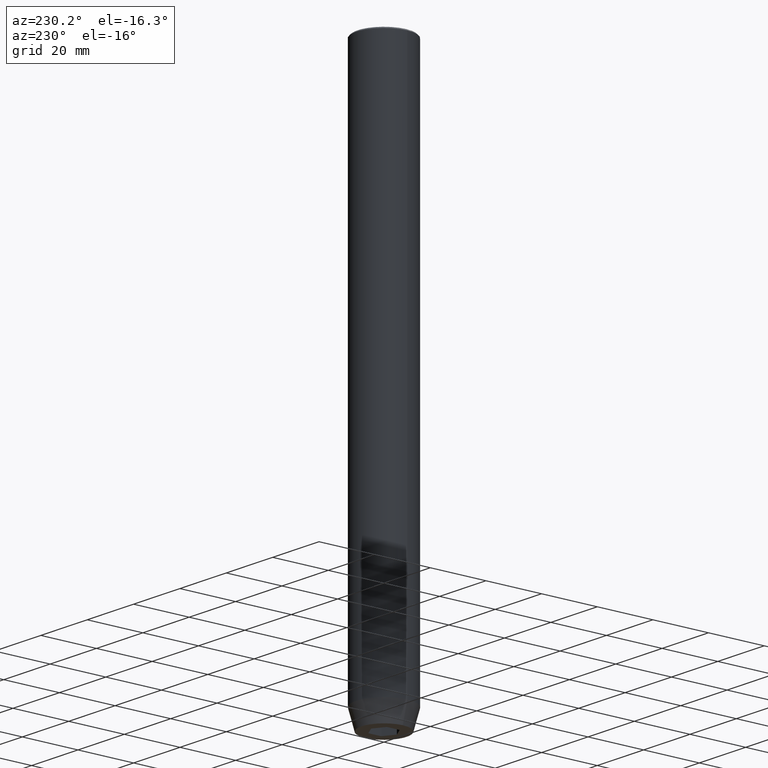
[diagram: clean part render]
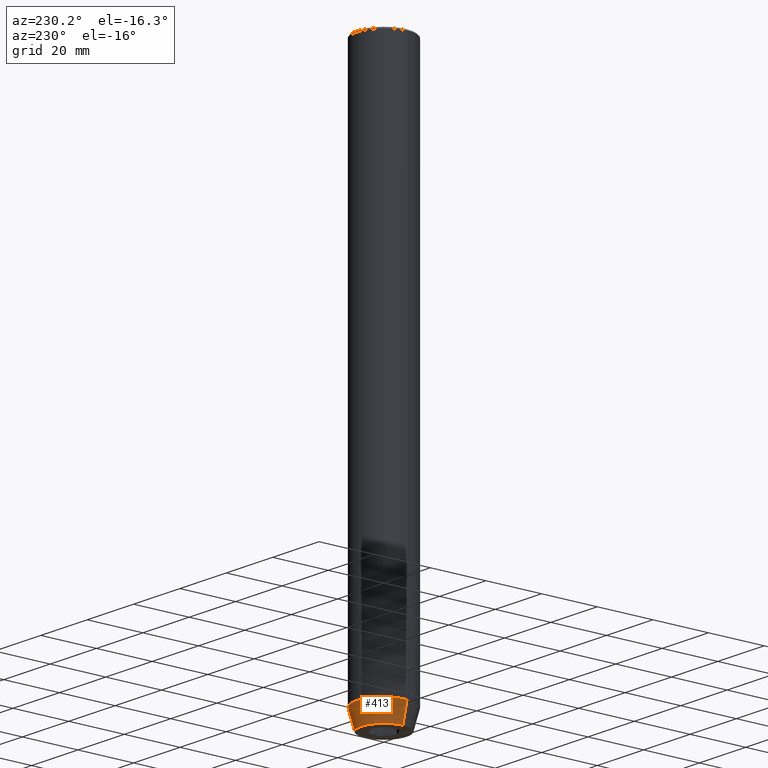
[diagram: same view with one face highlighted and labeled with its STEP entity id]
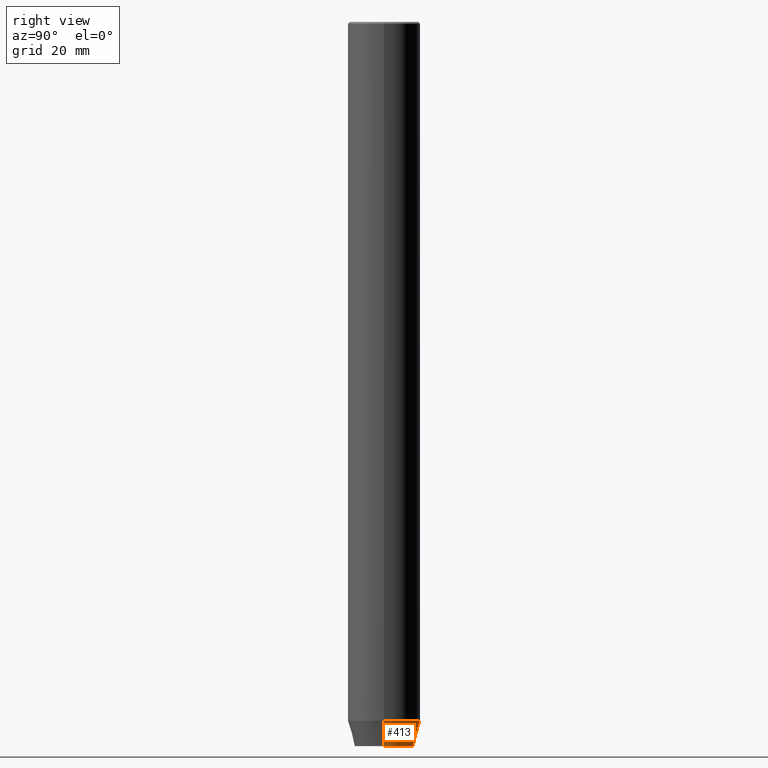
[diagram: same view with one face highlighted and labeled with its STEP entity id]
A machine part, auxiliary view. The second image highlights one B-rep face of the part: STEP entity #413.
A second angle (right view) of the same face is appended — the face is thin or edge-on in the first view.
In plain terms, the highlighted conical surface has half-angle 15 deg.
Its self-contained STEP definition (entity closure, byte-faithful):
#30 = DIRECTION ( 'NONE',  ( -0.000000000000000000, -0.000000000000000000, 1.000000000000000000 ) ) ;
#39 = ORIENTED_EDGE ( 'NONE', *, *, #83, .F. ) ;
#47 = LINE ( 'NONE', #189, #388 ) ;
#53 = VERTEX_POINT ( 'NONE', #569 ) ;
#55 = VECTOR ( 'NONE', #444, 1000.000000000000000 ) ;
#83 = EDGE_CURVE ( 'NONE', #53, #89, #453, .T. ) ;
#84 = DIRECTION ( 'NONE',  ( 1.000000000000000000, 0.000000000000000000, 0.000000000000000000 ) ) ;
#85 = AXIS2_PLACEMENT_3D ( 'NONE', #167, #409, #269 ) ;
#89 = VERTEX_POINT ( 'NONE', #210 ) ;
#99 = VERTEX_POINT ( 'NONE', #523 ) ;
#122 = DIRECTION ( 'NONE',  ( 1.000000000000000000, 0.000000000000000000, 0.000000000000000000 ) ) ;
#132 = DIRECTION ( 'NONE',  ( -0.000000000000000000, -0.000000000000000000, 1.000000000000000000 ) ) ;
#167 = CARTESIAN_POINT ( 'NONE',  ( 0.000000000000000000, 0.000000000000000000, -200.0000000000000000 ) ) ;
#168 = AXIS2_PLACEMENT_3D ( 'NONE', #365, #132, #84 ) ;
#170 = FACE_OUTER_BOUND ( 'NONE', #510, .T. ) ;
#176 = VERTEX_POINT ( 'NONE', #339 ) ;
#184 = EDGE_CURVE ( 'NONE', #176, #89, #47, .T. ) ;
#189 = CARTESIAN_POINT ( 'NONE',  ( -10.00000000000000000, 1.224646799147353256E-15, -193.0000000000000000 ) ) ;
#210 = CARTESIAN_POINT ( 'NONE',  ( -10.00000000000000000, 1.224646799147353256E-15, -193.0000000000000000 ) ) ;
#254 = LINE ( 'NONE', #261, #55 ) ;
#261 = CARTESIAN_POINT ( 'NONE',  ( 10.00000000000000000, 0.000000000000000000, -193.0000000000000000 ) ) ;
#262 = CARTESIAN_POINT ( 'NONE',  ( 0.000000000000000000, 0.000000000000000000, -193.0000000000000000 ) ) ;
#269 = DIRECTION ( 'NONE',  ( 1.000000000000000000, 0.000000000000000000, 0.000000000000000000 ) ) ;
#275 = AXIS2_PLACEMENT_3D ( 'NONE', #262, #30, #122 ) ;
#280 = ORIENTED_EDGE ( 'NONE', *, *, #184, .T. ) ;
#284 = ORIENTED_EDGE ( 'NONE', *, *, #585, .F. ) ;
#339 = CARTESIAN_POINT ( 'NONE',  ( -8.124355652982135467, 1.109796706851640556E-15, -200.0000000000000000 ) ) ;
#365 = CARTESIAN_POINT ( 'NONE',  ( 0.000000000000000000, 0.000000000000000000, -193.0000000000000000 ) ) ;
#388 = VECTOR ( 'NONE', #545, 1000.000000000000000 ) ;
#409 = DIRECTION ( 'NONE',  ( -0.000000000000000000, -0.000000000000000000, 1.000000000000000000 ) ) ;
#413 = ADVANCED_FACE ( 'NONE', ( #170 ), #580, .T. ) ;
#414 = ORIENTED_EDGE ( 'NONE', *, *, #418, .T. ) ;
#418 = EDGE_CURVE ( 'NONE', #99, #176, #478, .T. ) ;
#444 = DIRECTION ( 'NONE',  ( 0.2588190451025213501, 0.000000000000000000, 0.9659258262890680902 ) ) ;
#453 = CIRCLE ( 'NONE', #275, 10.00000000000000000 ) ;
#478 = CIRCLE ( 'NONE', #85, 8.124355652982135467 ) ;
#510 = EDGE_LOOP ( 'NONE', ( #414, #280, #39, #284 ) ) ;
#523 = CARTESIAN_POINT ( 'NONE',  ( 8.124355652982135467, 0.000000000000000000, -200.0000000000000000 ) ) ;
#545 = DIRECTION ( 'NONE',  ( -0.2588190451025213501, 3.169619151431772337E-17, 0.9659258262890680902 ) ) ;
#569 = CARTESIAN_POINT ( 'NONE',  ( 10.00000000000000000, 0.000000000000000000, -193.0000000000000000 ) ) ;
#580 = CONICAL_SURFACE ( 'NONE', #168, 10.00000000000000000, 0.2617993877991500740 ) ;
#585 = EDGE_CURVE ( 'NONE', #99, #53, #254, .T. ) ;